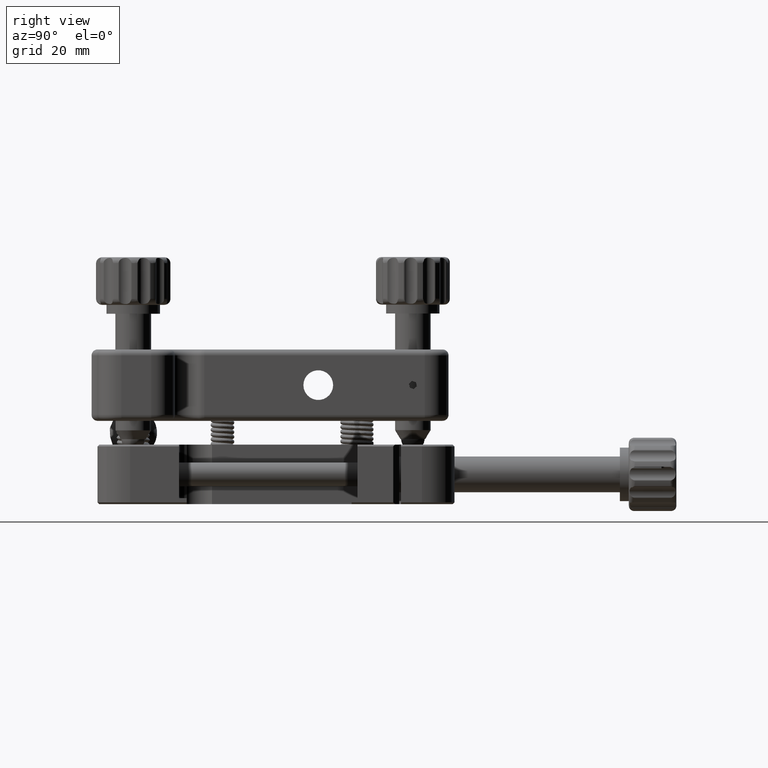
[diagram: clean part render]
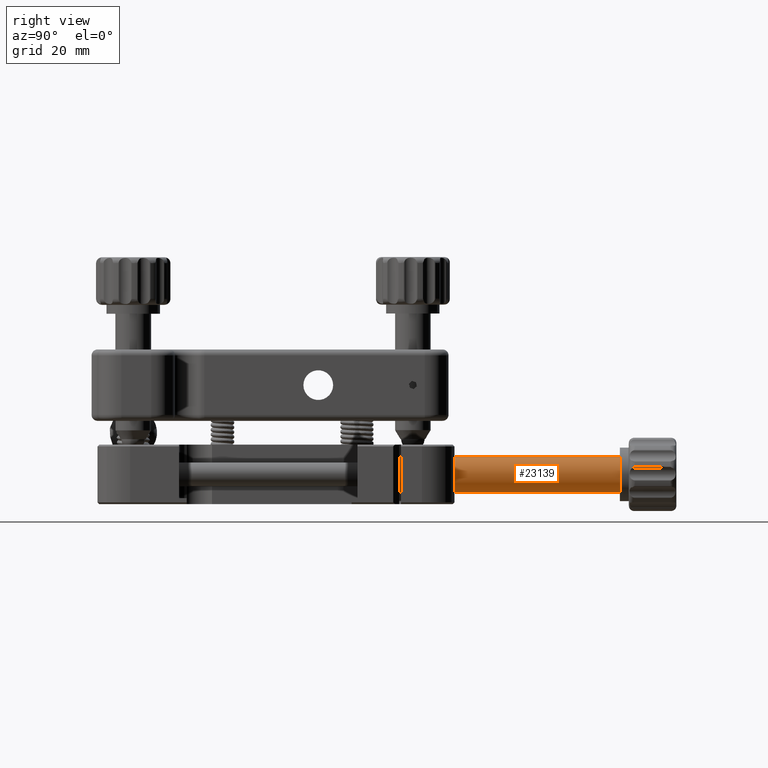
[diagram: same view with one face highlighted and labeled with its STEP entity id]
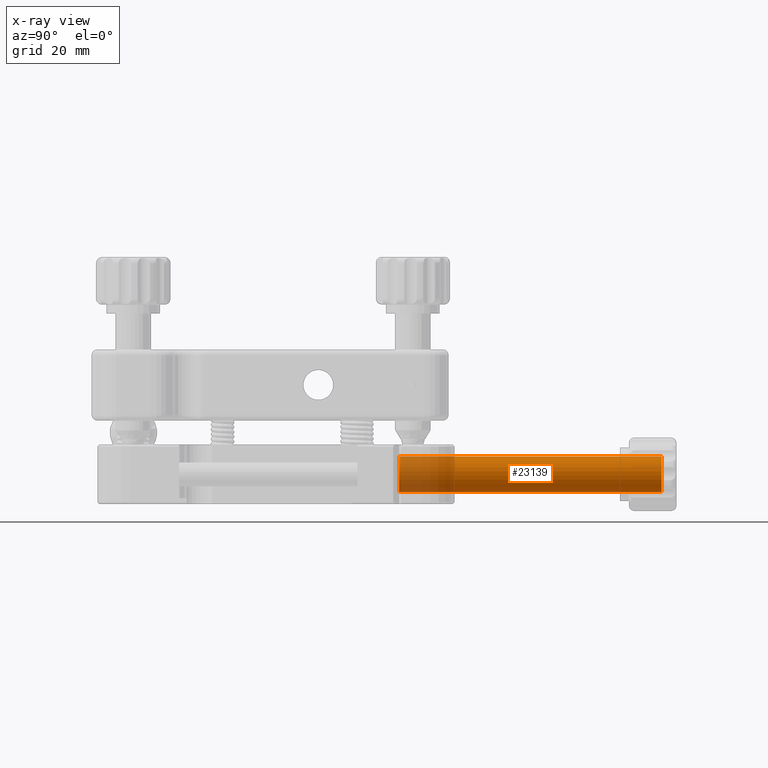
[diagram: x-ray of the same camera — body ghosted, the highlighted face saturated]
A machine part, right view. The second image highlights one B-rep face of the part: STEP entity #23139.
The next image is the same camera in x-ray: the body ghosted, the highlighted face saturated — about 20% of this face is hidden behind the body in this view.
In plain terms, the highlighted cylindrical surface (bore or boss wall) has radius 3 mm, axis along (0, -1, -0).
Its self-contained STEP definition (entity closure, byte-faithful):
#816 = DIRECTION ( 'NONE',  ( -0.8481960324601468537, 0.000000000000000000, 0.5296824430910143100 ) ) ;
#1536 = DIRECTION ( 'NONE',  ( 3.635851533904239292E-16, -1.000000000000000000, -2.069290283457466951E-16 ) ) ;
#2789 = DIRECTION ( 'NONE',  ( 3.635851533904239292E-16, -1.000000000000000000, -2.069290283457466951E-16 ) ) ;
#3606 = EDGE_CURVE ( 'NONE', #12888, #12888, #23844, .T. ) ;
#4121 = FACE_OUTER_BOUND ( 'NONE', #14943, .T. ) ;
#5324 = DIRECTION ( 'NONE',  ( -0.8481960324601468537, 0.000000000000000000, 0.5296824430910143100 ) ) ;
#6804 = CARTESIAN_POINT ( 'NONE',  ( 38.09999999999992326, 23.21088264794384060, -14.99999999999995737 ) ) ;
#7773 = CIRCLE ( 'NONE', #21481, 3.000000000000012879 ) ;
#10819 = AXIS2_PLACEMENT_3D ( 'NONE', #6804, #12456, #816 ) ;
#12456 = DIRECTION ( 'NONE',  ( 3.635851533904239292E-16, -1.000000000000000000, -2.069290283457466951E-16 ) ) ;
#12579 = CARTESIAN_POINT ( 'NONE',  ( 38.09999999999988063, 95.80000000000001137, -14.99999999999995914 ) ) ;
#12888 = VERTEX_POINT ( 'NONE', #15205 ) ;
#13291 = AXIS2_PLACEMENT_3D ( 'NONE', #16148, #2789, #19462 ) ;
#13455 = FACE_OUTER_BOUND ( 'NONE', #22952, .T. ) ;
#13800 = ORIENTED_EDGE ( 'NONE', *, *, #17362, .T. ) ;
#14943 = EDGE_LOOP ( 'NONE', ( #21628 ) ) ;
#15205 = CARTESIAN_POINT ( 'NONE',  ( 35.55541190261953233, 51.70000000000000995, -13.41095267072694597 ) ) ;
#16014 = CYLINDRICAL_SURFACE ( 'NONE', #10819, 3.000000000000012879 ) ;
#16148 = CARTESIAN_POINT ( 'NONE',  ( 38.09999999999998010, 51.70000000000000995, -14.99999999999999645 ) ) ;
#17362 = EDGE_CURVE ( 'NONE', #20080, #20080, #7773, .T. ) ;
#19462 = DIRECTION ( 'NONE',  ( -0.8481960324601468537, 0.000000000000000000, 0.5296824430910143100 ) ) ;
#20080 = VERTEX_POINT ( 'NONE', #21929 ) ;
#21481 = AXIS2_PLACEMENT_3D ( 'NONE', #12579, #1536, #5324 ) ;
#21628 = ORIENTED_EDGE ( 'NONE', *, *, #3606, .F. ) ;
#21929 = CARTESIAN_POINT ( 'NONE',  ( 35.55541190261943285, 95.80000000000001137, -13.41095267072691044 ) ) ;
#22952 = EDGE_LOOP ( 'NONE', ( #13800 ) ) ;
#23139 = ADVANCED_FACE ( 'NONE', ( #13455, #4121 ), #16014, .T. ) ;
#23844 = CIRCLE ( 'NONE', #13291, 3.000000000000012879 ) ;